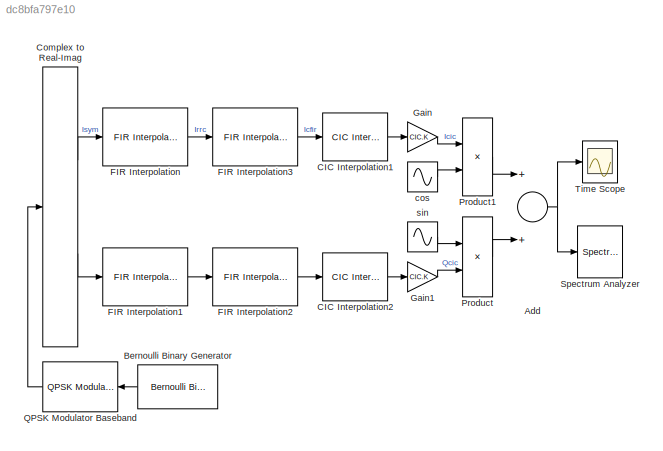
MODEL slx_dc8bfa797e10
KIND model
CONFIG AbsTol = auto
CONFIG EnableMultiTasking = off
CONFIG FixedStep = auto
CONFIG MaxStep = auto
CONFIG MinStep = auto
CONFIG PreLoadFcn = fs=1e8;\npr731_DUC_setup;\nfc=40e6;
CONFIG RelTol = 1e-3
CONFIG SampleTimeConstraint = Unconstrained
CONFIG Solver = VariableStepAuto
CONFIG SolverName = VariableStepAuto
CONFIG StartTime = 0.0
CONFIG StopTime = 8192/fs
BLOCK [Sum] Add
  InputSameDT = off
  OutDataTypeStr = Inherit: Inherit via internal rule
  Ports = [2, 1]
  SaturateOnIntegerOverflow = off
BLOCK [Reference] Bernoulli Binary Generator  REF=commrandsrc3/Bernoulli Binary
Generator
  Ports = [0, 1]
  SourceBlock = commrandsrc3/Bernoulli Binary\nGenerator
  SourceProductBaseCode = CM
  SourceProductName = Communications System Toolbox
  SourceType = Bernoulli Binary Generator
BLOCK [Reference] CIC Interpolation1  REF=dspmlti4/CIC
Interpolation
  Ports = [1, 1]
  SourceBlock = dspmlti4/CIC\nInterpolation
  SourceProductBaseCode = DS
  SourceProductName = DSP System Toolbox
  SourceType = CIC Interpolation
  UserDataPersistent = on
BLOCK [Reference] CIC Interpolation2  REF=dspmlti4/CIC
Interpolation
  Ports = [1, 1]
  SourceBlock = dspmlti4/CIC\nInterpolation
  SourceProductBaseCode = DS
  SourceProductName = DSP System Toolbox
  SourceType = CIC Interpolation
  UserDataPersistent = on
BLOCK [ComplexToRealImag] Complex to Real-Imag
  Ports = [1, 2]
BLOCK [Reference] FIR Interpolation  REF=dspmlti4/FIR
Interpolation
  Ports = [1, 1]
  SourceBlock = dspmlti4/FIR\nInterpolation
  SourceProductBaseCode = DS
  SourceProductName = DSP System Toolbox
  SourceType = FIR Interpolation
  UserDataPersistent = on
BLOCK [Reference] FIR Interpolation1  REF=dspmlti4/FIR
Interpolation
  Ports = [1, 1]
  SourceBlock = dspmlti4/FIR\nInterpolation
  SourceProductBaseCode = DS
  SourceProductName = DSP System Toolbox
  SourceType = FIR Interpolation
  UserDataPersistent = on
BLOCK [Reference] FIR Interpolation2  REF=dspmlti4/FIR
Interpolation
  Ports = [1, 1]
  SourceBlock = dspmlti4/FIR\nInterpolation
  SourceProductBaseCode = DS
  SourceProductName = DSP System Toolbox
  SourceType = FIR Interpolation
  UserDataPersistent = on
BLOCK [Reference] FIR Interpolation3  REF=dspmlti4/FIR
Interpolation
  Ports = [1, 1]
  SourceBlock = dspmlti4/FIR\nInterpolation
  SourceProductBaseCode = DS
  SourceProductName = DSP System Toolbox
  SourceType = FIR Interpolation
  UserDataPersistent = on
BLOCK [Gain] Gain
  Gain = CIC.K
  OutDataTypeStr = fixdt(1,16)
  OutMax = 1
  OutMin = -1
  ParamDataTypeStr = Inherit: Inherit via internal rule
  SaturateOnIntegerOverflow = off
BLOCK [Gain] Gain1
  Gain = CIC.K
  OutDataTypeStr = fixdt(1,16)
  OutMax = 1
  OutMin = -1
  ParamDataTypeStr = Inherit: Inherit via internal rule
  SaturateOnIntegerOverflow = off
BLOCK [Product] Product
  InputSameDT = off
  OutDataTypeStr = Inherit: Inherit via internal rule
  Ports = [2, 1]
  RndMeth = Floor
  SaturateOnIntegerOverflow = off
BLOCK [Product] Product1
  InputSameDT = off
  OutDataTypeStr = Inherit: Inherit via internal rule
  Ports = [2, 1]
  RndMeth = Floor
  SaturateOnIntegerOverflow = off
BLOCK [Reference] QPSK Modulator Baseband  REF=commdigbbndpm3/QPSK
Modulator
Baseband
  Ports = [1, 1]
  SourceBlock = commdigbbndpm3/QPSK\nModulator\nBaseband
  SourceProductBaseCode = CM
  SourceProductName = Communications System Toolbox
  SourceType = QPSK Modulator Baseband
BLOCK [SpectrumAnalyzer] Spectrum Analyzer
  Ports = [1]
  ScopeSpecificationString = spbscopes.SpectrumAnalyzerBlockCfg('CurrentConfiguration', extmgr.ConfigurationSet(extmgr.Configuration('Core','General UI',true,'FigureColor',[1 1 1]),extmgr.Configuration('Core','Source UI',true),extmgr.Configuration('Sources','WiredSimulink',true),extmgr.Configuration('Sources','SimulinkEvent',false),extmgr.Configuration('Sources','Simulink',false),extmgr.Configuration('Sources','SPTool',false)...<+3388ch>
BLOCK [Scope] Time Scope
  DefaultConfigurationName = spbscopes.TimeScopeBlockCfg
  Floating = off
  NumInputPorts = 1
  Ports = [1]
  ScopeSpecificationString = spbscopes.TimeScopeBlockCfg('CurrentConfiguration', extmgr.ConfigurationSet(extmgr.Configuration('Core','General UI',true,'FigureColor',[1 1 1]),extmgr.Configuration('Core','Source UI',true),extmgr.Configuration('Sources','WiredSimulink',true),extmgr.Configuration('Visuals','Time Domain',true,'DisplayPropertyDefaults',struct('MinYLimReal','-0.06027','MaxYLimReal','0.06265','YLabelReal','Amplitude'...<+1698ch>
  UserDataPersistent = on
BLOCK [Sin] cos
  Frequency = fc*2*pi
  Phase = pi/2
  Ports = [0, 1]
  SampleTime = 1/fs
BLOCK [Sin] sin
  Frequency = fc*2*pi
  Ports = [0, 1]
  SampleTime = 1/fs
NET Add:1 -> Spectrum Analyzer:1, Time Scope:1
LINE Bernoulli Binary Generator:1 -> QPSK Modulator Baseband:1
LINE CIC Interpolation1:1 -> Gain:1
LINE CIC Interpolation2:1 -> Gain1:1
LINE Complex to Real-Imag:1 -> FIR Interpolation:1
LINE Complex to Real-Imag:2 -> FIR Interpolation1:1
LINE FIR Interpolation1:1 -> FIR Interpolation2:1
LINE FIR Interpolation2:1 -> CIC Interpolation2:1
LINE FIR Interpolation3:1 -> CIC Interpolation1:1
LINE FIR Interpolation:1 -> FIR Interpolation3:1
LINE Gain1:1 -> Product:2
LINE Gain:1 -> Product1:1
LINE Product1:1 -> Add:1
LINE Product:1 -> Add:2
LINE QPSK Modulator Baseband:1 -> Complex to Real-Imag:1
LINE cos:1 -> Product1:2
LINE sin:1 -> Product:1
note: NET lines group one-source signal fan-out (src -> all destinations, sorted); 1:1 wires keep LINE
